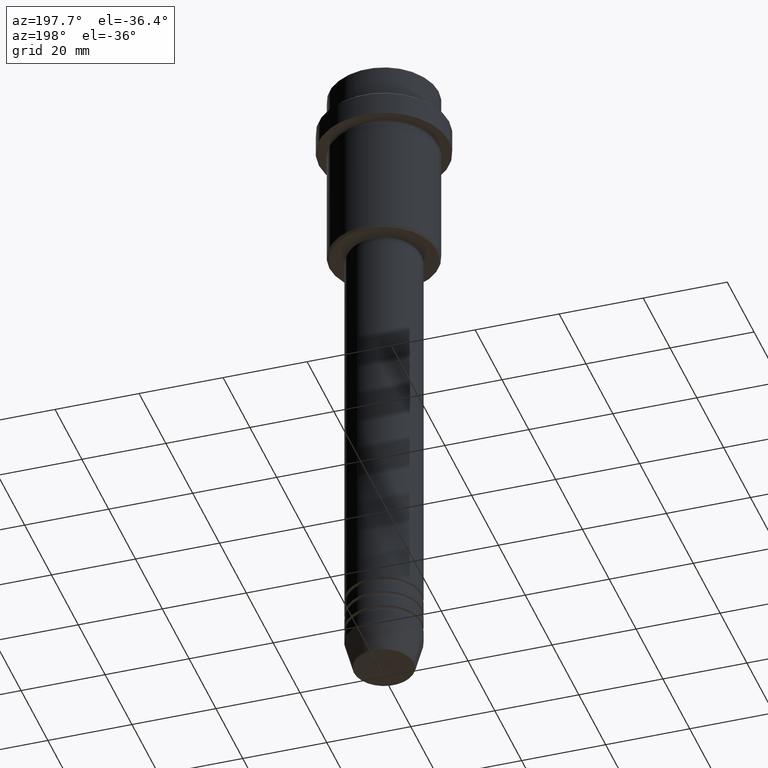
[diagram: clean part render]
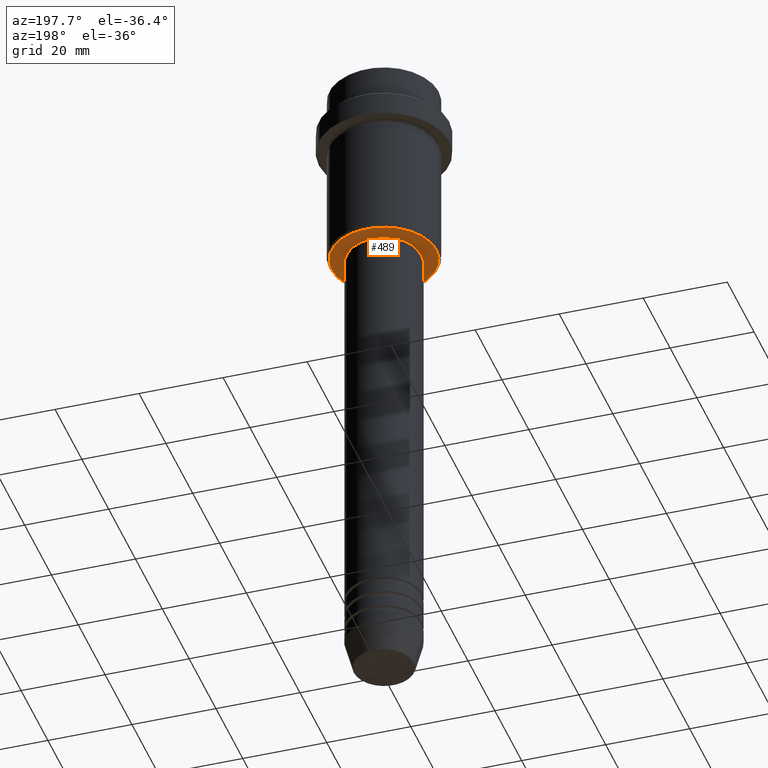
[diagram: same view with one face highlighted and labeled with its STEP entity id]
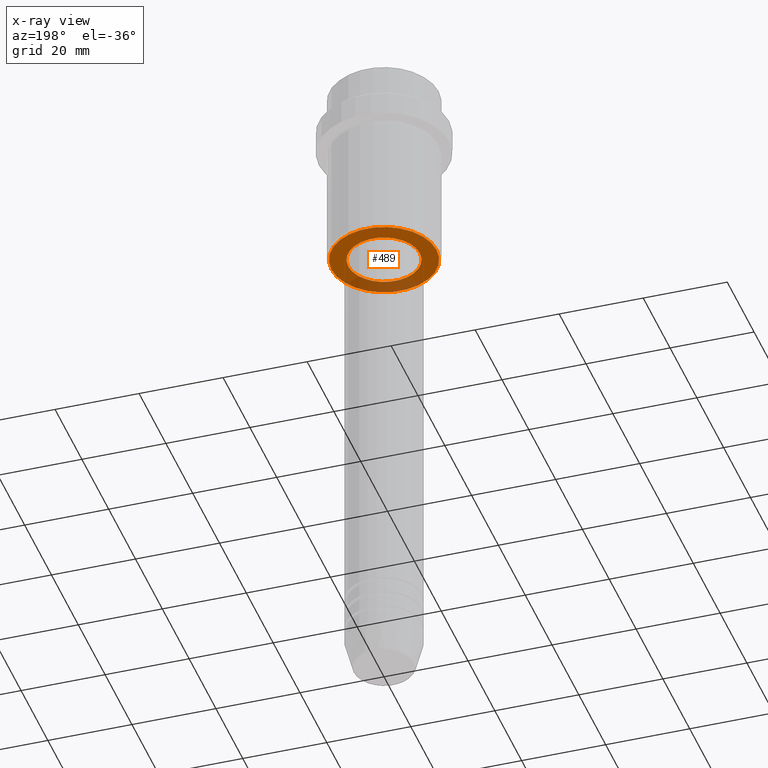
[diagram: x-ray of the same camera — body ghosted, the highlighted face saturated]
A machine part, auxiliary view. The second image highlights one B-rep face of the part: STEP entity #489.
The next image is the same camera in x-ray: the body ghosted, the highlighted face saturated — about 23% of this face is hidden behind the body in this view.
In plain terms, the highlighted planar face has unit normal (0, 0, -1).
Its self-contained STEP definition (entity closure, byte-faithful):
#30 = DIRECTION ( 'NONE',  ( 1.000000000000000000, 0.000000000000000000, 0.000000000000000000 ) ) ;
#50 = EDGE_LOOP ( 'NONE', ( #954, #995 ) ) ;
#53 = VERTEX_POINT ( 'NONE', #958 ) ;
#77 = FACE_OUTER_BOUND ( 'NONE', #50, .T. ) ;
#107 = AXIS2_PLACEMENT_3D ( 'NONE', #239, #259, #1024 ) ;
#108 = CIRCLE ( 'NONE', #537, 8.499999999999994671 ) ;
#119 = CARTESIAN_POINT ( 'NONE',  ( 0.000000000000000000, 0.000000000000000000, -44.99999999999998579 ) ) ;
#124 = DIRECTION ( 'NONE',  ( 1.000000000000000000, 0.000000000000000000, 0.000000000000000000 ) ) ;
#132 = VERTEX_POINT ( 'NONE', #338 ) ;
#151 = CIRCLE ( 'NONE', #107, 12.49999999999996980 ) ;
#239 = CARTESIAN_POINT ( 'NONE',  ( 0.000000000000000000, 0.000000000000000000, -44.99999999999998579 ) ) ;
#243 = DIRECTION ( 'NONE',  ( -0.000000000000000000, -0.000000000000000000, 1.000000000000000000 ) ) ;
#259 = DIRECTION ( 'NONE',  ( 0.000000000000000000, 0.000000000000000000, -1.000000000000000000 ) ) ;
#338 = CARTESIAN_POINT ( 'NONE',  ( -12.49999999999996980, 1.561424668912873336E-15, -44.99999999999998579 ) ) ;
#339 = DIRECTION ( 'NONE',  ( -0.000000000000000000, -0.000000000000000000, 1.000000000000000000 ) ) ;
#401 = CIRCLE ( 'NONE', #1364, 8.499999999999994671 ) ;
#406 = CARTESIAN_POINT ( 'NONE',  ( 0.000000000000000000, 13.00000000000000000, -44.99999999999998579 ) ) ;
#438 = DIRECTION ( 'NONE',  ( 0.000000000000000000, 0.000000000000000000, -1.000000000000000000 ) ) ;
#489 = ADVANCED_FACE ( 'NONE', ( #77, #526 ), #963, .T. ) ;
#493 = AXIS2_PLACEMENT_3D ( 'NONE', #406, #868, #1296 ) ;
#498 = VERTEX_POINT ( 'NONE', #1302 ) ;
#513 = CIRCLE ( 'NONE', #718, 12.49999999999996980 ) ;
#526 = FACE_BOUND ( 'NONE', #715, .T. ) ;
#537 = AXIS2_PLACEMENT_3D ( 'NONE', #887, #243, #124 ) ;
#546 = EDGE_CURVE ( 'NONE', #132, #498, #513, .T. ) ;
#658 = DIRECTION ( 'NONE',  ( -1.000000000000000000, 0.000000000000000000, 0.000000000000000000 ) ) ;
#715 = EDGE_LOOP ( 'NONE', ( #773, #1243 ) ) ;
#718 = AXIS2_PLACEMENT_3D ( 'NONE', #1092, #438, #658 ) ;
#754 = EDGE_CURVE ( 'NONE', #498, #132, #151, .T. ) ;
#773 = ORIENTED_EDGE ( 'NONE', *, *, #1014, .T. ) ;
#775 = EDGE_CURVE ( 'NONE', #53, #1211, #401, .T. ) ;
#868 = DIRECTION ( 'NONE',  ( 0.000000000000000000, 0.000000000000000000, -1.000000000000000000 ) ) ;
#887 = CARTESIAN_POINT ( 'NONE',  ( 0.000000000000000000, 0.000000000000000000, -44.99999999999998579 ) ) ;
#954 = ORIENTED_EDGE ( 'NONE', *, *, #754, .T. ) ;
#958 = CARTESIAN_POINT ( 'NONE',  ( -8.499999999999994671, 1.040949779275249745E-15, -44.99999999999998579 ) ) ;
#963 = PLANE ( 'NONE',  #493 ) ;
#995 = ORIENTED_EDGE ( 'NONE', *, *, #546, .T. ) ;
#1014 = EDGE_CURVE ( 'NONE', #1211, #53, #108, .T. ) ;
#1024 = DIRECTION ( 'NONE',  ( -1.000000000000000000, 0.000000000000000000, 0.000000000000000000 ) ) ;
#1092 = CARTESIAN_POINT ( 'NONE',  ( 0.000000000000000000, 0.000000000000000000, -44.99999999999998579 ) ) ;
#1211 = VERTEX_POINT ( 'NONE', #1329 ) ;
#1243 = ORIENTED_EDGE ( 'NONE', *, *, #775, .T. ) ;
#1296 = DIRECTION ( 'NONE',  ( -1.000000000000000000, 0.000000000000000000, -0.000000000000000000 ) ) ;
#1302 = CARTESIAN_POINT ( 'NONE',  ( 12.49999999999996980, 0.000000000000000000, -44.99999999999998579 ) ) ;
#1329 = CARTESIAN_POINT ( 'NONE',  ( 8.499999999999994671, 0.000000000000000000, -44.99999999999998579 ) ) ;
#1364 = AXIS2_PLACEMENT_3D ( 'NONE', #119, #339, #30 ) ;